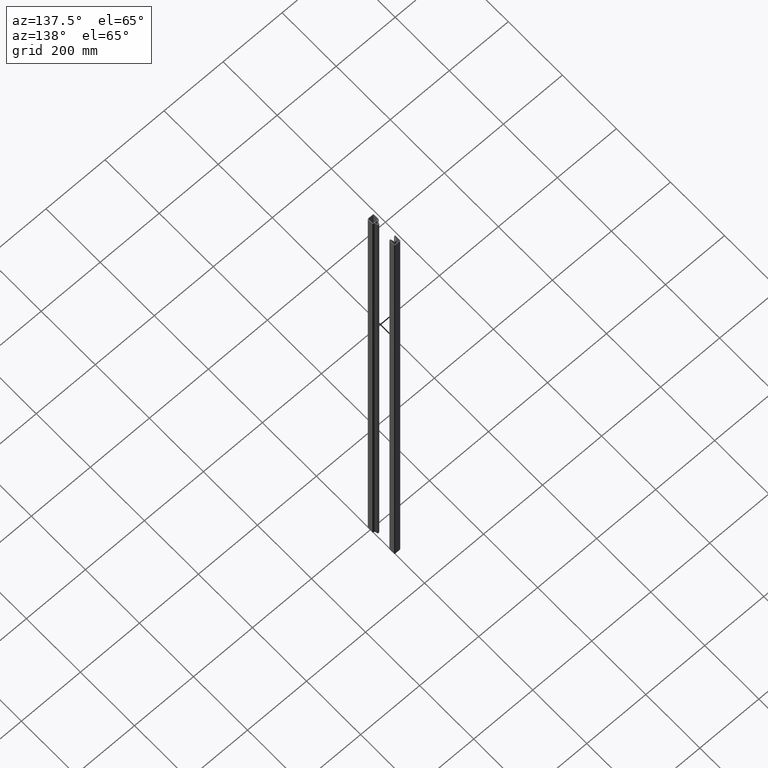
[diagram: clean part render]
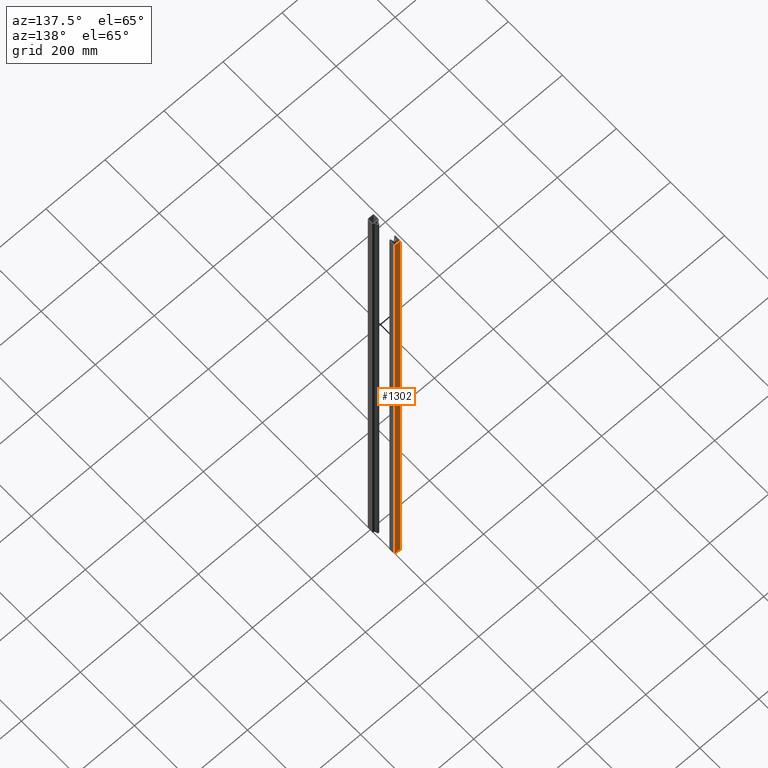
[diagram: same view with one face highlighted and labeled with its STEP entity id]
A machine part, auxiliary view. The second image highlights one B-rep face of the part: STEP entity #1302.
In plain terms, the highlighted planar face has unit normal (0, 1, 0).
Its self-contained STEP definition (entity closure, byte-faithful):
#43 = ORIENTED_EDGE ( 'NONE', *, *, #1717, .F. ) ;
#270 = VERTEX_POINT ( 'NONE', #1131 ) ;
#355 = LINE ( 'NONE', #1935, #995 ) ;
#374 = CARTESIAN_POINT ( 'NONE',  ( -8.300000000000000711, 0.000000000000000000, 0.000000000000000000 ) ) ;
#442 = EDGE_CURVE ( 'NONE', #1054, #934, #1308, .T. ) ;
#452 = FACE_OUTER_BOUND ( 'NONE', #1349, .T. ) ;
#486 = ORIENTED_EDGE ( 'NONE', *, *, #1417, .T. ) ;
#644 = PLANE ( 'NONE',  #2284 ) ;
#807 = LINE ( 'NONE', #1586, #1489 ) ;
#934 = VERTEX_POINT ( 'NONE', #2230 ) ;
#995 = VECTOR ( 'NONE', #1135, 1000.000000000000000 ) ;
#1013 = DIRECTION ( 'NONE',  ( 0.000000000000000000, 0.000000000000000000, 1.000000000000000000 ) ) ;
#1054 = VERTEX_POINT ( 'NONE', #374 ) ;
#1131 = CARTESIAN_POINT ( 'NONE',  ( 8.300000000000000711, 0.000000000000000000, -1825.000000000000000 ) ) ;
#1135 = DIRECTION ( 'NONE',  ( 0.000000000000000000, 0.000000000000000000, 1.000000000000000000 ) ) ;
#1186 = LINE ( 'NONE', #1616, #2041 ) ;
#1232 = DIRECTION ( 'NONE',  ( 0.000000000000000000, -0.000000000000000000, -1.000000000000000000 ) ) ;
#1302 = ADVANCED_FACE ( 'NONE', ( #452 ), #644, .T. ) ;
#1308 = LINE ( 'NONE', #1471, #2195 ) ;
#1349 = EDGE_LOOP ( 'NONE', ( #1794, #43, #2420, #486 ) ) ;
#1382 = EDGE_CURVE ( 'NONE', #1917, #270, #807, .T. ) ;
#1417 = EDGE_CURVE ( 'NONE', #270, #934, #1186, .T. ) ;
#1422 = CARTESIAN_POINT ( 'NONE',  ( -8.300000000000000711, 0.000000000000000000, -1825.000000000000000 ) ) ;
#1471 = CARTESIAN_POINT ( 'NONE',  ( -8.300000000000000711, 0.000000000000000000, 0.000000000000000000 ) ) ;
#1489 = VECTOR ( 'NONE', #2346, 1000.000000000000000 ) ;
#1586 = CARTESIAN_POINT ( 'NONE',  ( -8.300000000000000711, 0.000000000000000000, -1825.000000000000000 ) ) ;
#1594 = CARTESIAN_POINT ( 'NONE',  ( -8.300000000000000711, 0.000000000000000000, -1825.000000000000000 ) ) ;
#1616 = CARTESIAN_POINT ( 'NONE',  ( 8.300000000000000711, 0.000000000000000000, -1825.000000000000000 ) ) ;
#1717 = EDGE_CURVE ( 'NONE', #1917, #1054, #355, .T. ) ;
#1794 = ORIENTED_EDGE ( 'NONE', *, *, #442, .F. ) ;
#1917 = VERTEX_POINT ( 'NONE', #1594 ) ;
#1935 = CARTESIAN_POINT ( 'NONE',  ( -8.300000000000000711, 0.000000000000000000, -1825.000000000000000 ) ) ;
#2041 = VECTOR ( 'NONE', #1013, 1000.000000000000000 ) ;
#2178 = DIRECTION ( 'NONE',  ( 0.000000000000000000, -1.000000000000000000, 0.000000000000000000 ) ) ;
#2195 = VECTOR ( 'NONE', #2218, 1000.000000000000000 ) ;
#2218 = DIRECTION ( 'NONE',  ( 1.000000000000000000, 0.000000000000000000, 0.000000000000000000 ) ) ;
#2230 = CARTESIAN_POINT ( 'NONE',  ( 8.300000000000000711, 0.000000000000000000, 0.000000000000000000 ) ) ;
#2284 = AXIS2_PLACEMENT_3D ( 'NONE', #1422, #2178, #1232 ) ;
#2346 = DIRECTION ( 'NONE',  ( 1.000000000000000000, 0.000000000000000000, 0.000000000000000000 ) ) ;
#2420 = ORIENTED_EDGE ( 'NONE', *, *, #1382, .T. ) ;